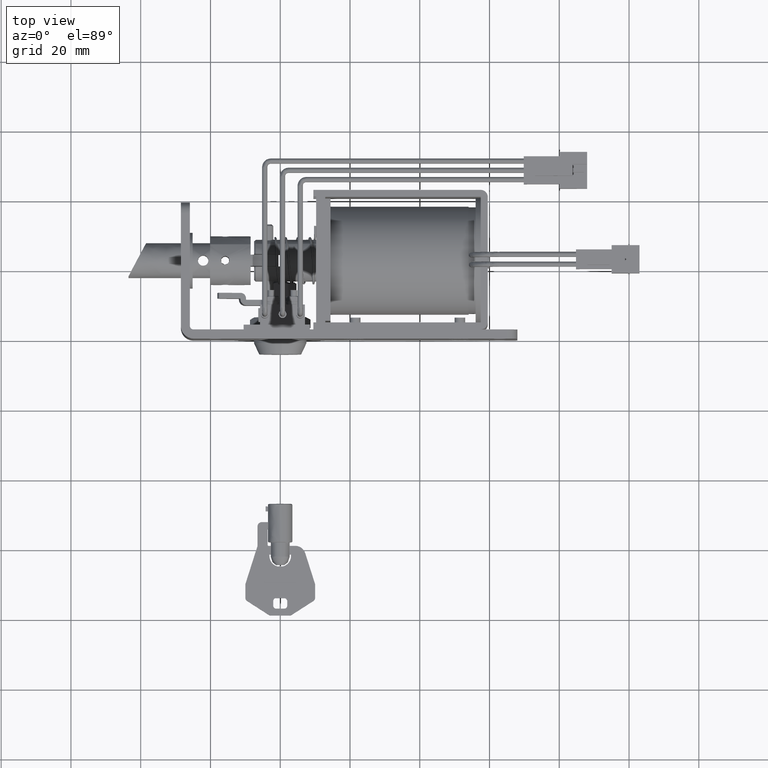
[diagram: clean part render]
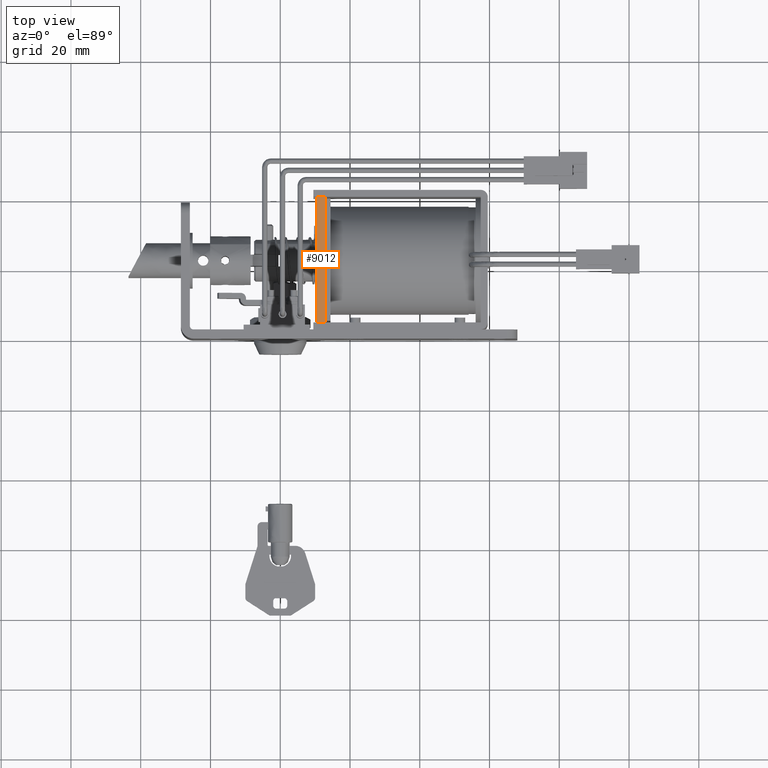
[diagram: same view with one face highlighted and labeled with its STEP entity id]
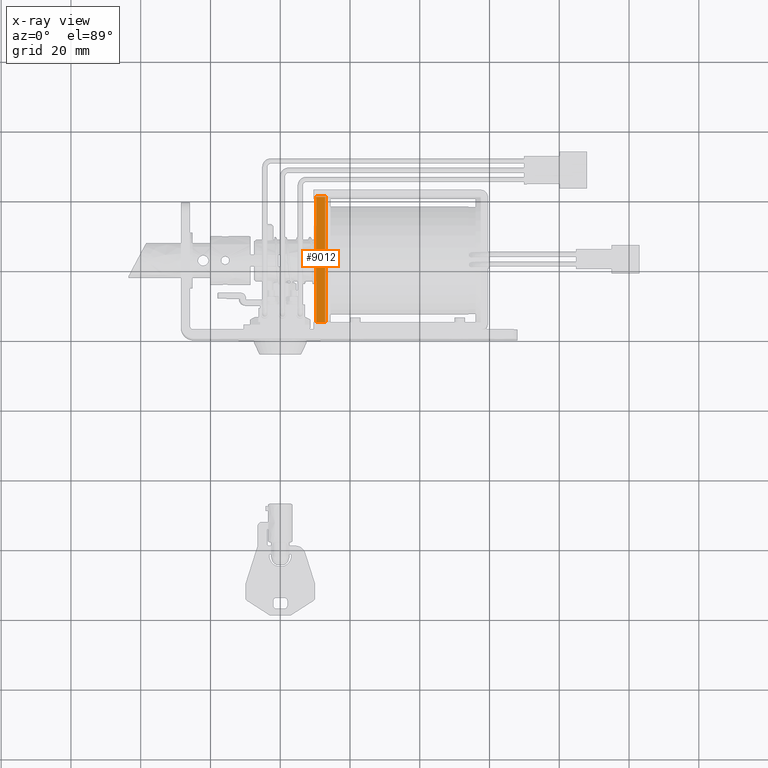
[diagram: x-ray of the same camera — body ghosted, the highlighted face saturated]
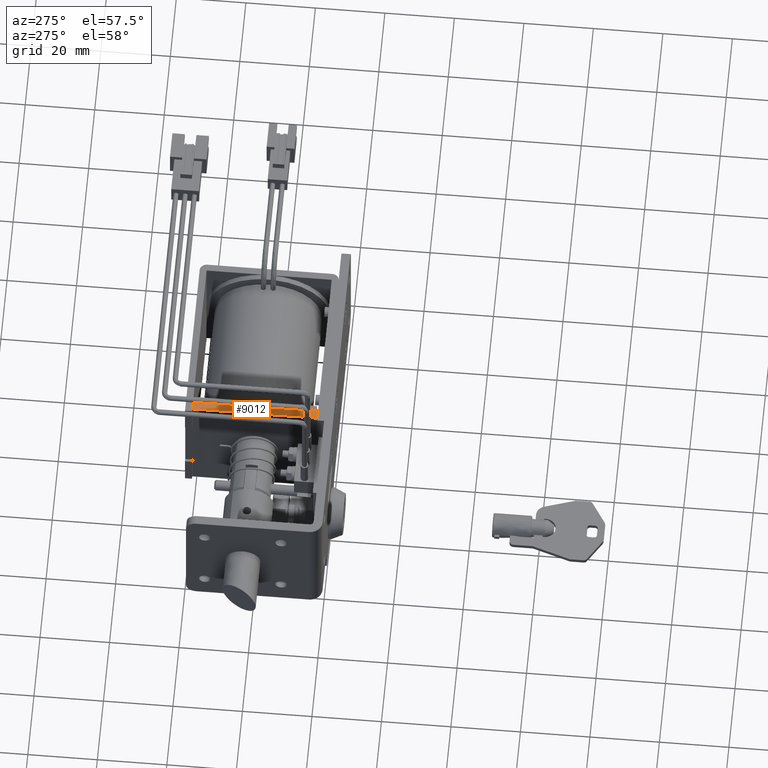
[diagram: same view with one face highlighted and labeled with its STEP entity id]
A machine part, top view. The second image highlights one B-rep face of the part: STEP entity #9012.
The next image is the same camera in x-ray: the body ghosted, the highlighted face saturated — about 0% of this face is hidden behind the body in this view.
A second angle (auxiliary view) of the same face is appended — the face is thin or edge-on in the first view.
In plain terms, the highlighted face is a freeform B-spline surface patch.
Its self-contained STEP definition (entity closure, byte-faithful):
#8867=CARTESIAN_POINT('',(12.899999999999579,40.599999999999497,33.990000000000002));
#8868=VERTEX_POINT('',#8867);
#8874=CARTESIAN_POINT('',(12.899999999999579,4.600000000000360,33.990000000000002));
#8875=VERTEX_POINT('',#8874);
#8876=CARTESIAN_POINT('',(12.899999999999579,4.600000000000360,33.990000000000002));
#8877=CARTESIAN_POINT('',(12.899999999999579,40.599999999999497,33.990000000000002));
#8878=QUASI_UNIFORM_CURVE('',1,(#8876,#8877),.UNSPECIFIED.,.F.,.U.);
#8879=EDGE_CURVE('',#8875,#8868,#8878,.T.);
#8958=CARTESIAN_POINT('',(10.299999999999621,4.600000000000360,33.990000000000002));
#8959=VERTEX_POINT('',#8958);
#8965=CARTESIAN_POINT('',(10.299999999999640,40.599999999999497,33.990000000000002));
#8966=VERTEX_POINT('',#8965);
#8967=CARTESIAN_POINT('',(10.299999999999621,4.600000000000360,33.990000000000002));
#8968=CARTESIAN_POINT('',(10.299999999999640,40.599999999999497,33.990000000000002));
#8969=QUASI_UNIFORM_CURVE('',1,(#8967,#8968),.UNSPECIFIED.,.F.,.U.);
#8970=EDGE_CURVE('',#8959,#8966,#8969,.T.);
#8993=CARTESIAN_POINT('',(10.170130005038930,2.801800069775386,33.990000000000002));
#8994=CARTESIAN_POINT('',(13.029870064697709,2.801800069775386,33.990000000000002));
#8995=CARTESIAN_POINT('',(10.170130005038930,42.398200895819720,33.990000000000002));
#8996=CARTESIAN_POINT('',(13.029870064697709,42.398200895819720,33.990000000000002));
#8997=B_SPLINE_SURFACE_WITH_KNOTS('',1,1,((#8993,#8995),(#8994,#8996)),.UNSPECIFIED.,.F.,.F.,.U.,(2,2),(2,2),(0.0,2.859740059658783),(0.0,39.596400826044331),.UNSPECIFIED.);
#8998=ORIENTED_EDGE('',*,*,#8970,.F.);
#8999=CARTESIAN_POINT('',(12.899999999999579,4.600000000000360,33.990000000000002));
#9000=CARTESIAN_POINT('',(10.299999999999621,4.600000000000360,33.990000000000002));
#9001=QUASI_UNIFORM_CURVE('',1,(#8999,#9000),.UNSPECIFIED.,.F.,.U.);
#9002=EDGE_CURVE('',#8875,#8959,#9001,.T.);
#9003=ORIENTED_EDGE('',*,*,#9002,.F.);
#9004=ORIENTED_EDGE('',*,*,#8879,.T.);
#9005=CARTESIAN_POINT('',(12.899999999999579,40.599999999999497,33.990000000000002));
#9006=CARTESIAN_POINT('',(10.299999999999640,40.599999999999497,33.990000000000002));
#9007=QUASI_UNIFORM_CURVE('',1,(#9005,#9006),.UNSPECIFIED.,.F.,.U.);
#9008=EDGE_CURVE('',#8868,#8966,#9007,.T.);
#9009=ORIENTED_EDGE('',*,*,#9008,.T.);
#9010=EDGE_LOOP('',(#8998,#9003,#9004,#9009));
#9011=FACE_OUTER_BOUND('',#9010,.T.);
#9012=ADVANCED_FACE('',(#9011),#8997,.T.);